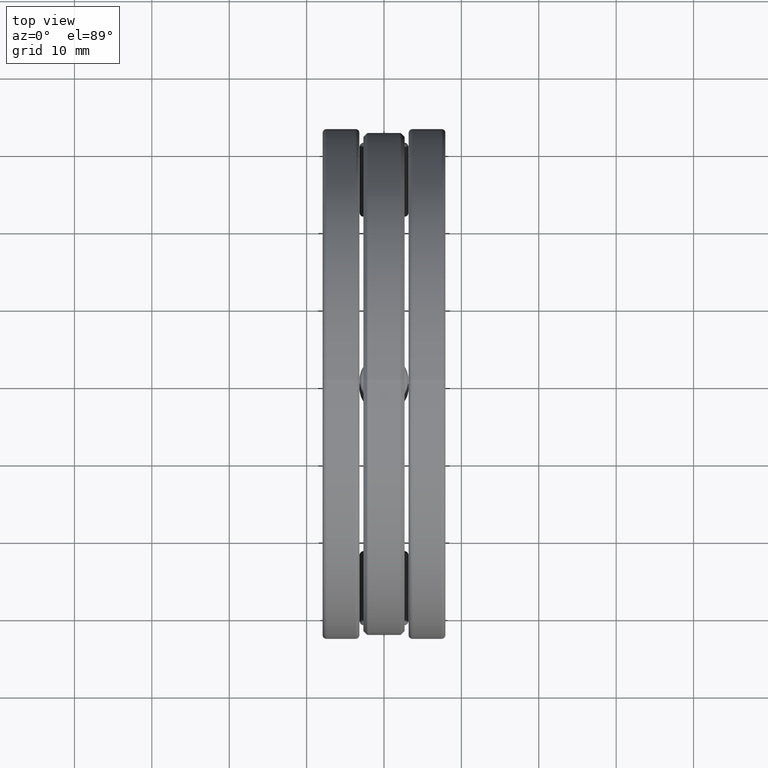
[diagram: clean part render]
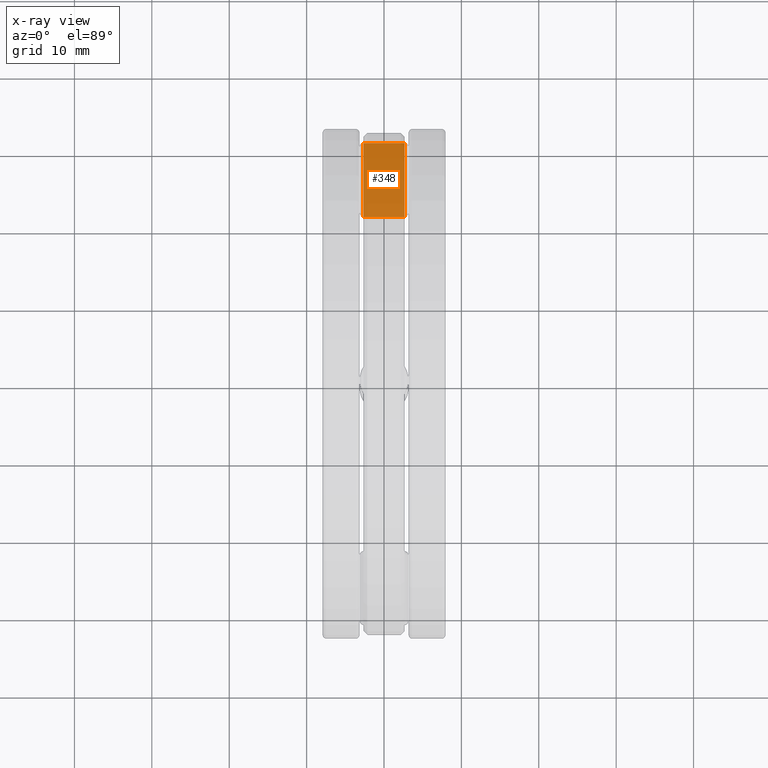
[diagram: x-ray — body ghosted, one internal face saturated and labeled with its STEP entity id]
A machine part, top view, then the same camera in x-ray: the body is ghosted and one INTERNAL B-rep face — a face not visible from any outside direction — is saturated and labeled: STEP entity #348.
In plain terms, the highlighted planar face has unit normal (0, 0, -1).
Its self-contained STEP definition (entity closure, byte-faithful):
#2 = DIRECTION ( 'NONE',  ( 1.000000000000000000, -0.0000000000000000000, -0.0000000000000000000 ) ) ;
#69 = DIRECTION ( 'NONE',  ( 1.000000000000000000, -0.0000000000000000000, -0.0000000000000000000 ) ) ;
#75 = VECTOR ( 'NONE', #2, 39.37007874015748100 ) ;
#125 = CARTESIAN_POINT ( 'NONE',  ( -0.1049999999999999700, 1.226874999999999700, -0.1249999999999999900 ) ) ;
#157 = EDGE_LOOP ( 'NONE', ( #1081, #1362, #681, #916 ) ) ;
#166 = VECTOR ( 'NONE', #1072, 39.37007874015748100 ) ;
#208 = FACE_OUTER_BOUND ( 'NONE', #157, .T. ) ;
#250 = EDGE_CURVE ( 'NONE', #640, #708, #1350, .T. ) ;
#284 = EDGE_CURVE ( 'NONE', #708, #831, #472, .T. ) ;
#292 = CARTESIAN_POINT ( 'NONE',  ( -0.3125000000000000000, 1.226874999999999700, -0.1249999999999999900 ) ) ;
#309 = CARTESIAN_POINT ( 'NONE',  ( -0.1049999999999999700, -2.312598603077324400E-017, -0.1250000000000000300 ) ) ;
#348 = ADVANCED_FACE ( 'NONE', ( #208 ), #444, .F. ) ;
#407 = VECTOR ( 'NONE', #69, 39.37007874015748100 ) ;
#412 = EDGE_CURVE ( 'NONE', #877, #831, #423, .T. ) ;
#423 = LINE ( 'NONE', #541, #1077 ) ;
#444 = PLANE ( 'NONE',  #664 ) ;
#458 = CARTESIAN_POINT ( 'NONE',  ( 0.1050000000000000400, 0.8512500000000000600, -0.1250000000000000000 ) ) ;
#472 = LINE ( 'NONE', #292, #407 ) ;
#512 = CARTESIAN_POINT ( 'NONE',  ( 0.1050000000000000400, 1.226874999999999700, -0.1249999999999999900 ) ) ;
#541 = CARTESIAN_POINT ( 'NONE',  ( 0.1050000000000000200, 1.391269910570776200E-017, -0.1250000000000000300 ) ) ;
#543 = DIRECTION ( 'NONE',  ( -0.0000000000000000000, 1.000000000000000000, 4.545504149191790500E-017 ) ) ;
#640 = VERTEX_POINT ( 'NONE', #915 ) ;
#664 = AXIS2_PLACEMENT_3D ( 'NONE', #878, #980, #1102 ) ;
#681 = ORIENTED_EDGE ( 'NONE', *, *, #250, .F. ) ;
#708 = VERTEX_POINT ( 'NONE', #125 ) ;
#831 = VERTEX_POINT ( 'NONE', #512 ) ;
#877 = VERTEX_POINT ( 'NONE', #458 ) ;
#878 = CARTESIAN_POINT ( 'NONE',  ( -0.3125000000000000000, 0.8512500000000000600, -0.1250000000000000000 ) ) ;
#915 = CARTESIAN_POINT ( 'NONE',  ( -0.1049999999999999700, 0.8512500000000000600, -0.1250000000000000000 ) ) ;
#916 = ORIENTED_EDGE ( 'NONE', *, *, #1149, .T. ) ;
#980 = DIRECTION ( 'NONE',  ( 0.0000000000000000000, 4.545504149191790500E-017, -1.000000000000000000 ) ) ;
#1072 = DIRECTION ( 'NONE',  ( -0.0000000000000000000, 1.000000000000000000, 4.545504149191790500E-017 ) ) ;
#1077 = VECTOR ( 'NONE', #543, 39.37007874015748100 ) ;
#1081 = ORIENTED_EDGE ( 'NONE', *, *, #412, .T. ) ;
#1088 = CARTESIAN_POINT ( 'NONE',  ( -0.3125000000000000000, 0.8512500000000000600, -0.1250000000000000000 ) ) ;
#1102 = DIRECTION ( 'NONE',  ( 0.0000000000000000000, 1.000000000000000000, 4.545504149191790500E-017 ) ) ;
#1110 = LINE ( 'NONE', #1088, #75 ) ;
#1149 = EDGE_CURVE ( 'NONE', #640, #877, #1110, .T. ) ;
#1350 = LINE ( 'NONE', #309, #166 ) ;
#1362 = ORIENTED_EDGE ( 'NONE', *, *, #284, .F. ) ;